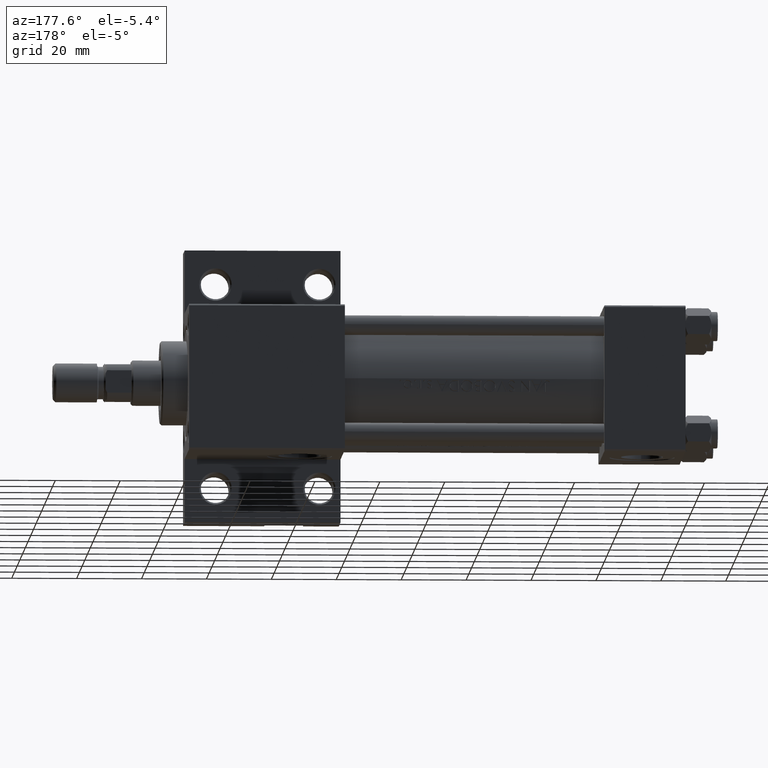
[diagram: clean part render]
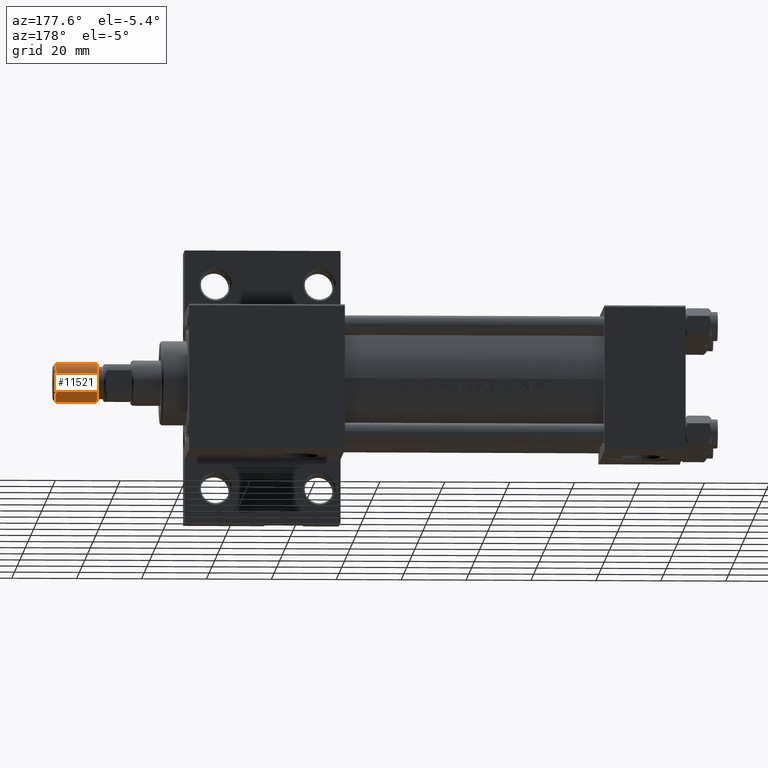
[diagram: same view with one face highlighted and labeled with its STEP entity id]
A machine part, auxiliary view. The second image highlights one B-rep face of the part: STEP entity #11521.
In plain terms, the highlighted cylindrical surface (edge-blend (fillet) strip) has radius 6 mm, axis along (1, -0, -0).
Its self-contained STEP definition (entity closure, byte-faithful):
#1126 = ORIENTED_EDGE ( 'NONE', *, *, #30712, .F. ) ;
#2112 = CARTESIAN_POINT ( 'NONE',  ( -6.000000000000000888, 0.000000000000000000, 0.8000000000000055955 ) ) ;
#2371 = AXIS2_PLACEMENT_3D ( 'NONE', #9728, #17767, #6560 ) ;
#3716 = DIRECTION ( 'NONE',  ( -0.000000000000000000, -0.000000000000000000, -1.000000000000000000 ) ) ;
#4429 = LINE ( 'NONE', #7351, #25873 ) ;
#5263 = ORIENTED_EDGE ( 'NONE', *, *, #20895, .F. ) ;
#5987 = CARTESIAN_POINT ( 'NONE',  ( 6.000000000000000888, 7.347880794884120722E-16, 13.50000000000000000 ) ) ;
#6560 = DIRECTION ( 'NONE',  ( 1.000000000000000000, 0.000000000000000000, 0.000000000000000000 ) ) ;
#7179 = AXIS2_PLACEMENT_3D ( 'NONE', #28044, #34642, #42906 ) ;
#7351 = CARTESIAN_POINT ( 'NONE',  ( -6.000000000000000888, 0.000000000000000000, 13.50000000000000000 ) ) ;
#9728 = CARTESIAN_POINT ( 'NONE',  ( 0.000000000000000000, 0.000000000000000000, 13.50000000000000000 ) ) ;
#11038 = CIRCLE ( 'NONE', #7179, 6.000000000000000888 ) ;
#11249 = VERTEX_POINT ( 'NONE', #28944 ) ;
#11521 = ADVANCED_FACE ( 'NONE', ( #35434 ), #46403, .T. ) ;
#13008 = DIRECTION ( 'NONE',  ( -1.000000000000000000, 0.000000000000000000, 0.000000000000000000 ) ) ;
#13331 = VECTOR ( 'NONE', #35720, 1000.000000000000000 ) ;
#13726 = DIRECTION ( 'NONE',  ( -0.000000000000000000, -0.000000000000000000, -1.000000000000000000 ) ) ;
#14716 = VERTEX_POINT ( 'NONE', #37929 ) ;
#15489 = CARTESIAN_POINT ( 'NONE',  ( 6.000000000000000888, 7.347880794884120722E-16, 13.50000000000000000 ) ) ;
#16913 = ORIENTED_EDGE ( 'NONE', *, *, #27941, .T. ) ;
#17767 = DIRECTION ( 'NONE',  ( 0.000000000000000000, 0.000000000000000000, 1.000000000000000000 ) ) ;
#20895 = EDGE_CURVE ( 'NONE', #29392, #14716, #42849, .T. ) ;
#25138 = EDGE_LOOP ( 'NONE', ( #5263, #44606, #16913, #1126 ) ) ;
#25244 = AXIS2_PLACEMENT_3D ( 'NONE', #39549, #13726, #13008 ) ;
#25873 = VECTOR ( 'NONE', #3716, 1000.000000000000000 ) ;
#27640 = EDGE_CURVE ( 'NONE', #29392, #11249, #46919, .T. ) ;
#27673 = VERTEX_POINT ( 'NONE', #2112 ) ;
#27941 = EDGE_CURVE ( 'NONE', #11249, #27673, #11038, .T. ) ;
#28044 = CARTESIAN_POINT ( 'NONE',  ( 0.000000000000000000, 0.000000000000000000, 0.8000000000000055955 ) ) ;
#28944 = CARTESIAN_POINT ( 'NONE',  ( 6.000000000000000888, 7.347880794884120722E-16, 0.8000000000000055955 ) ) ;
#29392 = VERTEX_POINT ( 'NONE', #15489 ) ;
#30712 = EDGE_CURVE ( 'NONE', #14716, #27673, #4429, .T. ) ;
#34642 = DIRECTION ( 'NONE',  ( -0.000000000000000000, -0.000000000000000000, 1.000000000000000000 ) ) ;
#35434 = FACE_OUTER_BOUND ( 'NONE', #25138, .T. ) ;
#35720 = DIRECTION ( 'NONE',  ( -0.000000000000000000, -0.000000000000000000, -1.000000000000000000 ) ) ;
#37929 = CARTESIAN_POINT ( 'NONE',  ( -6.000000000000000888, 0.000000000000000000, 13.50000000000000000 ) ) ;
#39549 = CARTESIAN_POINT ( 'NONE',  ( 0.000000000000000000, 0.000000000000000000, 13.50000000000000000 ) ) ;
#42849 = CIRCLE ( 'NONE', #2371, 6.000000000000000888 ) ;
#42906 = DIRECTION ( 'NONE',  ( 1.000000000000000000, 0.000000000000000000, 0.000000000000000000 ) ) ;
#44606 = ORIENTED_EDGE ( 'NONE', *, *, #27640, .T. ) ;
#46403 = CYLINDRICAL_SURFACE ( 'NONE', #25244, 6.000000000000000888 ) ;
#46919 = LINE ( 'NONE', #5987, #13331 ) ;